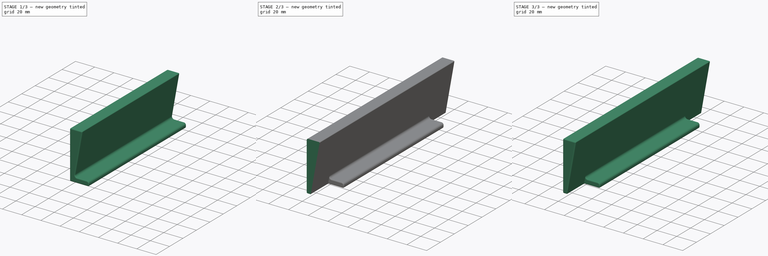
[diagram: build sequence overview — one tinted view per stage of 3, left to right]
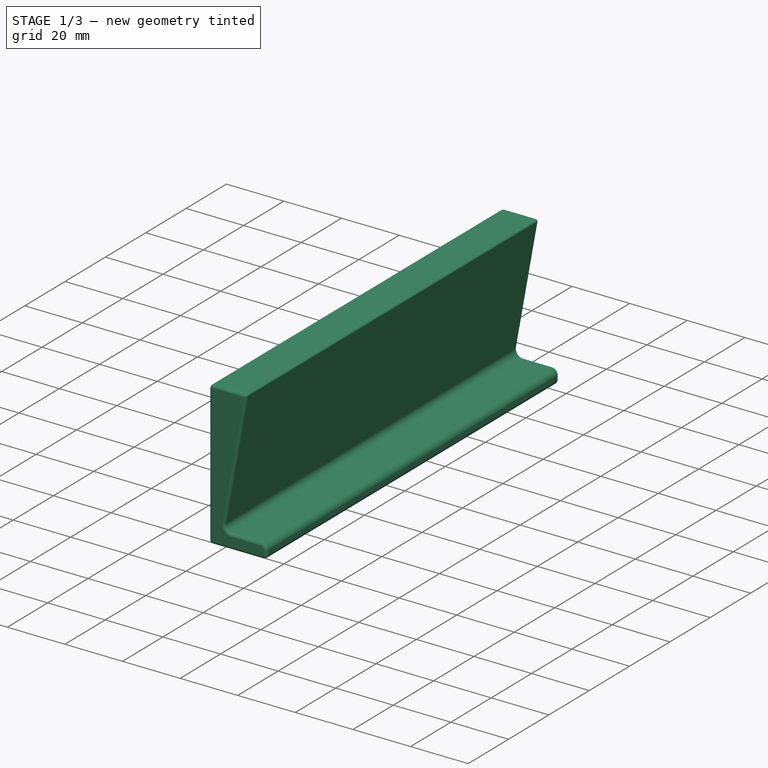
[diagram: stage 1 of 3 — iso view after this stage's code; geometry added in this stage tinted green]
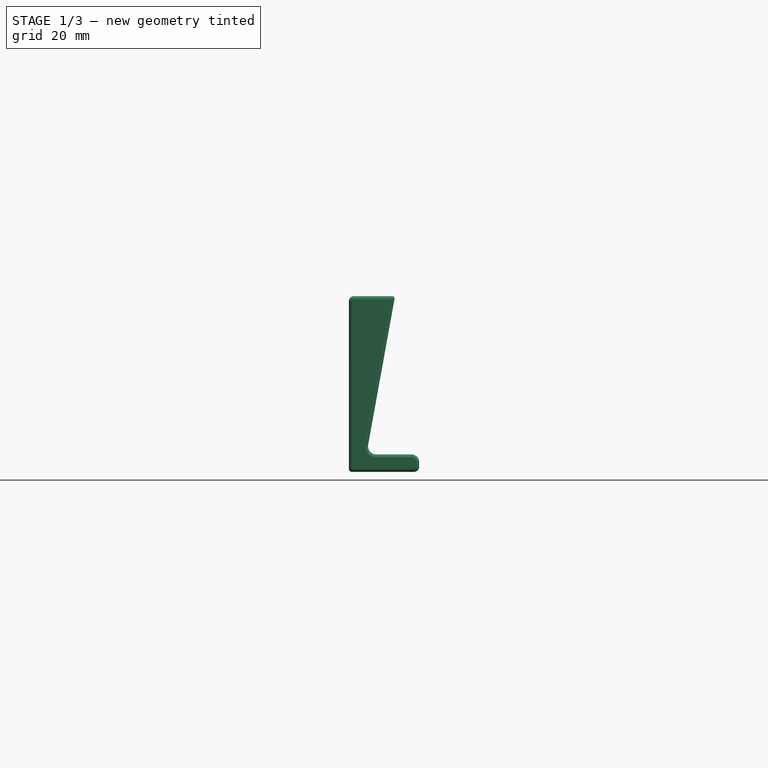
[diagram: stage 1 of 3 — front view after this stage's code; geometry added in this stage tinted green]
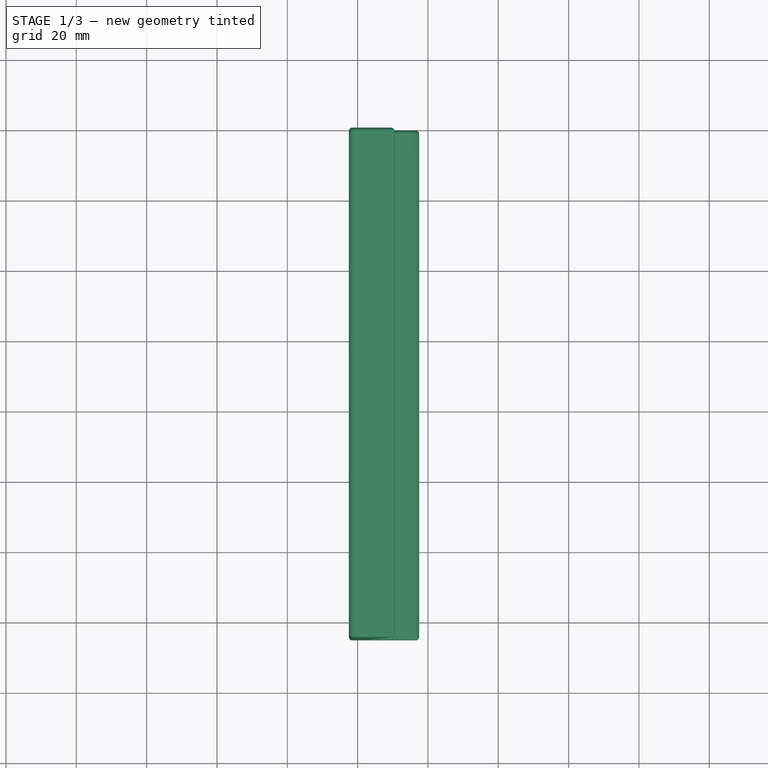
[diagram: stage 1 of 3 — top view after this stage's code; geometry added in this stage tinted green]
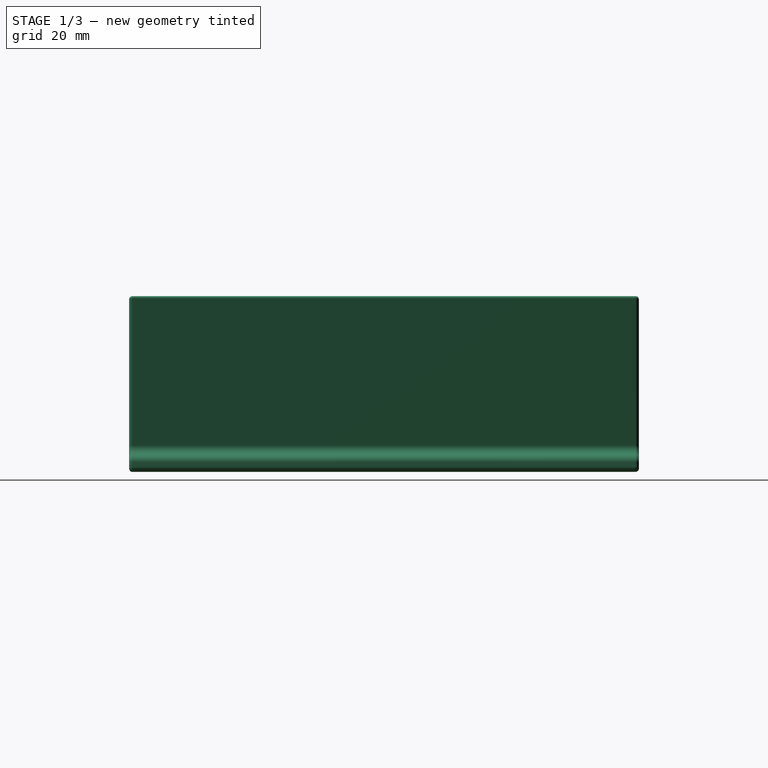
[diagram: stage 1 of 3 — right view after this stage's code; geometry added in this stage tinted green]
FCSTD DOCUMENT  (FreeCAD 2024.1006R14555 (Git shallow))
Label: Mounting_Spacer
License: All rights reserved
LicenseURL: https://en.wikipedia.org/wiki/All_rights_reserved
objects: Sketcher::SketchObject×2, Part::Extrusion×2, Part::Fillet×2, Part::MultiFuse×1
note: 9 computed .brp shape members not serialized (recipe doc carries the construction recipe); baked Part::Feature solids carry a one-line shape summary decoded from their .brp

FEATURE [Sketcher::SketchObject] Sketch
  ArcFitTolerance = 1e-06
  ExternalBSplineMaxDegree = 5
  ExternalBSplineTolerance = 0.0001
  FullyConstrained = false
  InternalTolerance = 1e-06
  InvalidShape = false
  MakeInternals = false
  Placement = pos=(0,0,0) rot=(1,0,0;1.5708rad)
  TreeRank = 1
  ValidateShape = false
  sketch-geometry (12):
    g0: LineSegment StartX=-4.69052 StartY=6e-16 StartZ=0 EndX=-14.7171 EndY=-4e-16 EndZ=0
    g1: LineSegment StartX=-17.0062 StartY=2.73999 StartZ=0 EndX=-9.5 EndY=44.2656 EndZ=0
    g2: LineSegment StartX=-10.1136 StartY=45 StartZ=0 EndX=-21.0312 EndY=45 EndZ=0
    g3: LineSegment StartX=-22.5 StartY=43.5312 StartZ=0 EndX=-22.5 EndY=-4.08405 EndZ=0
    g4: LineSegment StartX=-21.584 StartY=-5 StartZ=0 EndX=-4.06473 EndY=-5 EndZ=0
    g5: LineSegment StartX=-2.5 StartY=-3.43527 StartZ=0 EndX=-2.5 EndY=-2.19052 EndZ=0
    g6: ArcOfCircle CenterX=-21.0312 CenterY=43.5312 CenterZ=0 NormalX=0 NormalY=0 NormalZ=1 AngleXU=0 Radius=1.4688 StartAngle=1.5708 EndAngle=3.14159
    g7: ArcOfCircle CenterX=-10.1136 CenterY=44.3765 CenterZ=0 NormalX=0 NormalY=0 NormalZ=1 AngleXU=0 Radius=0.623519 StartAngle=6.10436 EndAngle=7.85398
    g8: ArcOfCircle CenterX=-21.584 CenterY=-4.08405 CenterZ=0 NormalX=0 NormalY=0 NormalZ=1 AngleXU=0 Radius=0.915954 StartAngle=3.14159 EndAngle=4.71239
    g9: ArcOfCircle CenterX=-14.7171 CenterY=2.32621 CenterZ=0 NormalX=0 NormalY=0 NormalZ=1 AngleXU=0 Radius=2.32621 StartAngle=2.96276 EndAngle=4.71239
    g10: ArcOfCircle CenterX=-4.69052 CenterY=-2.19052 CenterZ=0 NormalX=0 NormalY=0 NormalZ=1 AngleXU=0 Radius=2.19052 StartAngle=0 EndAngle=1.5708
    g11: ArcOfCircle CenterX=-4.06473 CenterY=-3.43527 CenterZ=0 NormalX=0 NormalY=0 NormalZ=1 AngleXU=0 Radius=1.56473 StartAngle=4.71239 EndAngle=6.28319
  constraints (20):
    c: Horizontal(g4)
    c: Vertical(g5)
    c: Perpendicular(g4,g3)
    c: Perpendicular(g3,g2)
    c: Tangent(g3,g6) = -1.5708
    c: Tangent(g2,g6) = -1.5708
    c: Tangent(g2,g7) = -1.5708
    c: Tangent(g1,g7) = -1.5708
    c: Tangent(g3,g8) = -1.5708
    c: Tangent(g4,g8) = -1.5708
    c: Tangent(g1,g9) = 1.5708
    c: Tangent(g0,g9) = 1.5708
    c: Tangent(g0,g10) = -1.5708
    c: Tangent(g5,g10) = -1.5708
    c: Tangent(g4,g11) = -1.5708
    c: Tangent(g5,g11) = -1.5708
    c: DistanceX(g1,g-1) = 9.5
    c: DistanceX(g5,g-1) = 2.5
    c: DistanceY(g4,g-1) = 5
    c: DistanceY(g-1,g2) = 45
FEATURE [Part::Extrusion] Extrude
  AutoTaperInnerAngle = true
  Base = -> Sketch
  Dir = (0,-1,-2e-16)
  DirMode = 2
  FaceMakerClass = Part::FaceMakerBullseye
  InvalidShape = false
  LengthFwd = 145
  LengthRev = 0
  Linearize = true
  Solid = true
  Symmetric = false
  TaperInnerAngle = 0
  TaperInnerAngleRev = 0
  TreeRank = 7
  ValidateShape = false
FEATURE [Part::Fillet] Fillet
  Base = -> Extrude
  EdgeLinks = -> Extrude [Edge3,Edge4,Edge6,Edge7,Edge27,Edge28,Edge30,Edge31,Edge33,Edge34,Edge35,Edge36]
  Edges = 12 edges r=1: [Edge3,Edge4,Edge6,Edge7,Edge27,Edge28,Edge30,Edge31,Edge33,Edge34,Edge35,Edge36]
  InvalidShape = false
  TreeRank = 8
  ValidateShape = false
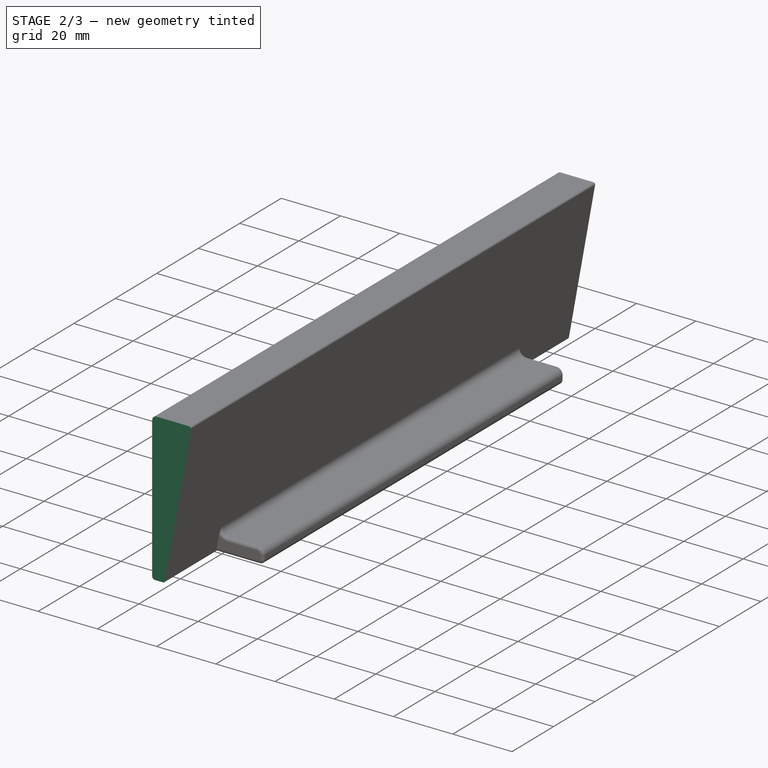
[diagram: stage 2 of 3 — iso view after this stage's code; geometry added in this stage tinted green]
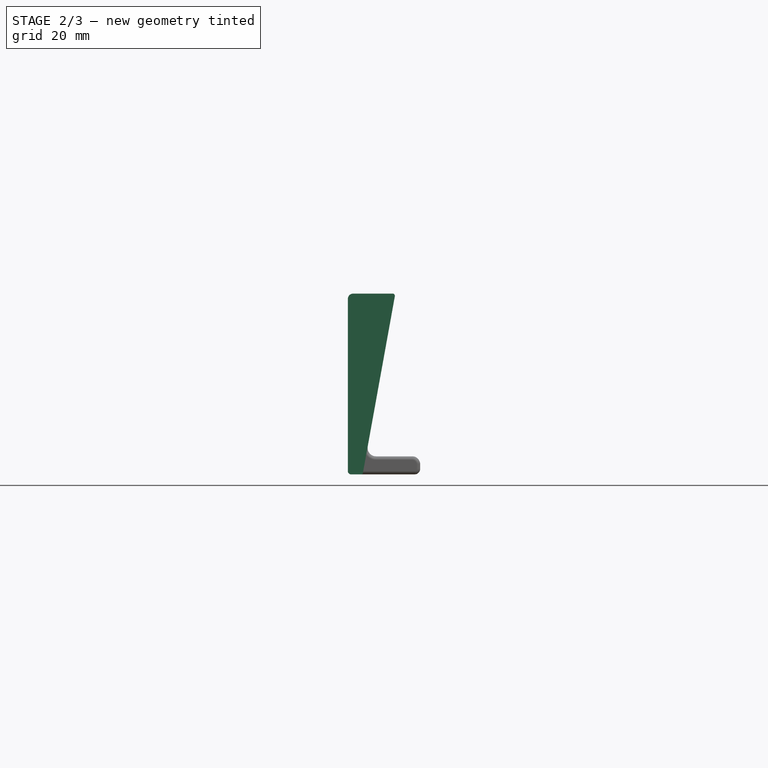
[diagram: stage 2 of 3 — front view after this stage's code; geometry added in this stage tinted green]
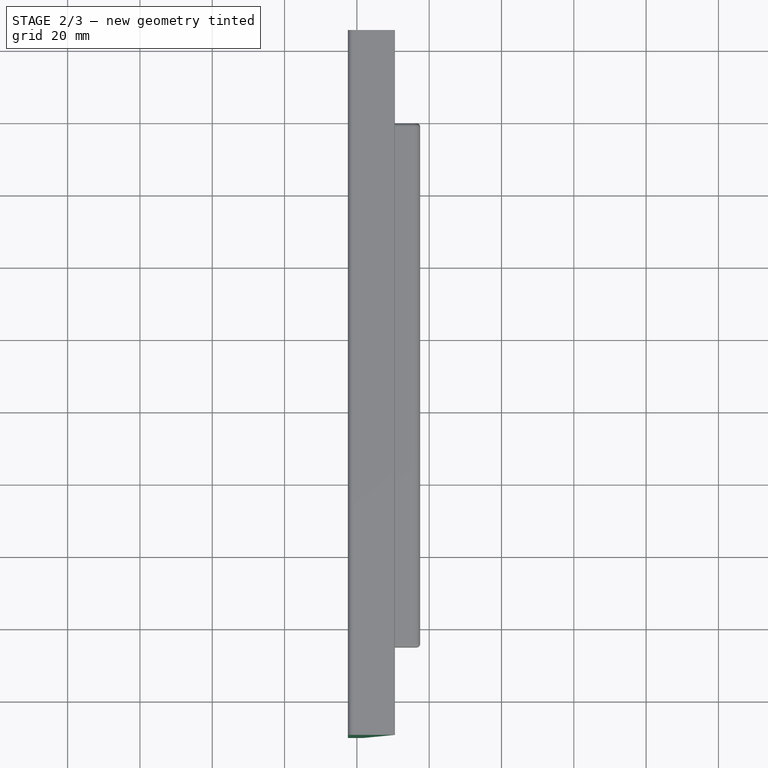
[diagram: stage 2 of 3 — top view after this stage's code; geometry added in this stage tinted green]
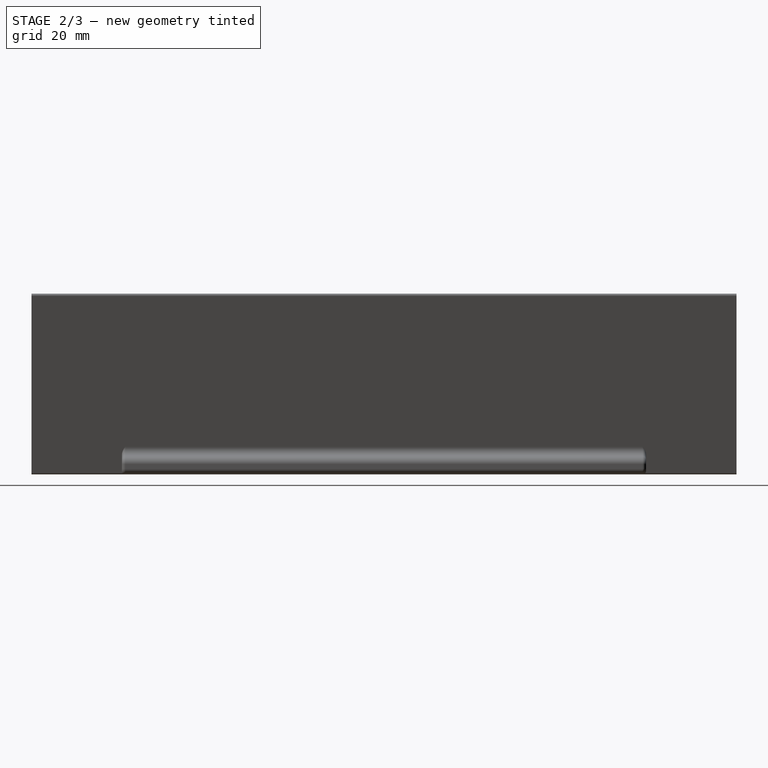
[diagram: stage 2 of 3 — right view after this stage's code; geometry added in this stage tinted green]
FEATURE [Sketcher::SketchObject] Sketch001
  ArcFitTolerance = 1e-06
  ExternalBSplineMaxDegree = 5
  ExternalBSplineTolerance = 0.0001
  FullyConstrained = false
  InternalTolerance = 1e-06
  InvalidShape = false
  MakeInternals = false
  Placement = pos=(0,0,0) rot=(1,0,0;1.5708rad)
  TreeRank = 4
  ValidateShape = false
  sketch-geometry (8):
    g0: LineSegment StartX=-18.337 StartY=-4.59943 StartZ=0 EndX=-9.5 EndY=44.2697 EndZ=0
    g1: LineSegment StartX=-10.1101 StartY=45 StartZ=0 EndX=-21.0312 EndY=45 EndZ=0
    g2: LineSegment StartX=-22.5 StartY=43.5312 StartZ=0 EndX=-22.5 EndY=-4.08405 EndZ=0
    g3: LineSegment StartX=-21.584 StartY=-5 StartZ=0 EndX=-18.8165 EndY=-5 EndZ=0
    g4: ArcOfCircle CenterX=-21.0312 CenterY=43.5312 CenterZ=0 NormalX=0 NormalY=0 NormalZ=1 AngleXU=0 Radius=1.4688 StartAngle=1.5708 EndAngle=3.14159
    g5: ArcOfCircle CenterX=-10.1101 CenterY=44.38 CenterZ=0 NormalX=0 NormalY=0 NormalZ=1 AngleXU=0 Radius=0.62 StartAngle=6.10429 EndAngle=7.85398
    g6: ArcOfCircle CenterX=-21.584 CenterY=-4.08405 CenterZ=0 NormalX=0 NormalY=0 NormalZ=1 AngleXU=0 Radius=0.915954 StartAngle=3.14159 EndAngle=4.71239
    g7: ArcOfCircle CenterX=-18.8165 CenterY=-4.51273 CenterZ=0 NormalX=0 NormalY=0 NormalZ=1 AngleXU=0 Radius=0.487272 StartAngle=4.71239 EndAngle=6.10429
  constraints (15):
    c: Horizontal(g3)
    c: Perpendicular(g3,g2)
    c: Perpendicular(g2,g1)
    c: Tangent(g2,g4) = -1.5708
    c: Tangent(g1,g4) = -1.5708
    c: Tangent(g1,g5) = -1.5708
    c: Tangent(g0,g5) = -1.5708
    c: Tangent(g2,g6) = -1.5708
    c: Tangent(g3,g6) = -1.5708
    c: DistanceX(g0,g-1) = 9.5
    c: DistanceY(g-1,g1) = 45
    c: Angle(g1,g0) = 1.3919
    c: Radius(g5) = 0.62
    c: Tangent(g0,g7) = -1.5708
    c: Tangent(g3,g7) = -1.5708
FEATURE [Part::Extrusion] Extrude001
  AutoTaperInnerAngle = true
  Base = -> Sketch001
  Dir = (0,-1,-2e-16)
  DirMode = 2
  FaceMakerClass = Part::FaceMakerBullseye
  InvalidShape = false
  LengthFwd = 170
  LengthRev = 25
  Linearize = true
  Solid = true
  Symmetric = false
  TaperInnerAngle = 0
  TaperInnerAngleRev = 0
  TreeRank = 6
  ValidateShape = false
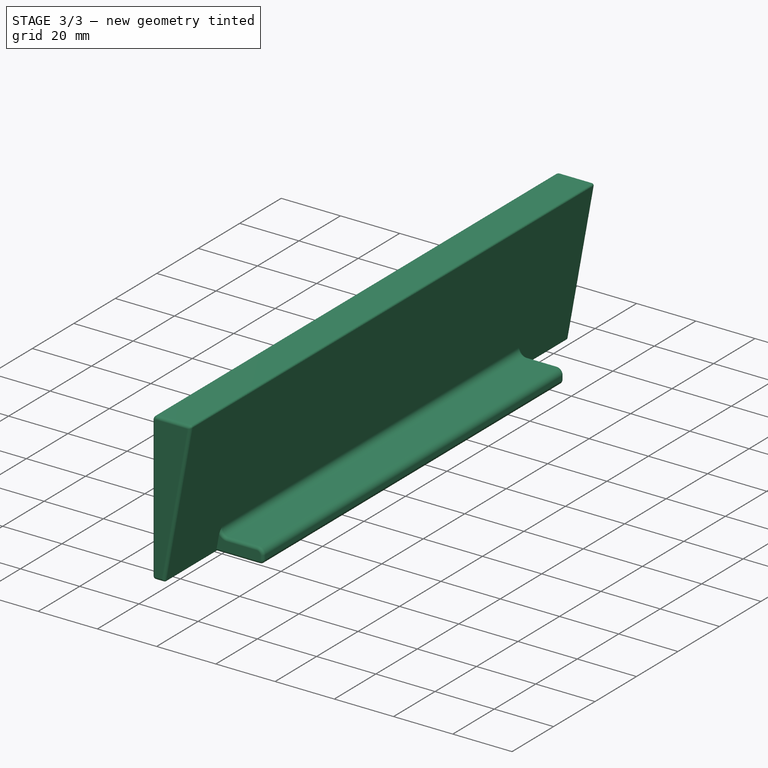
[diagram: stage 3 of 3 — iso view after this stage's code; geometry added in this stage tinted green]
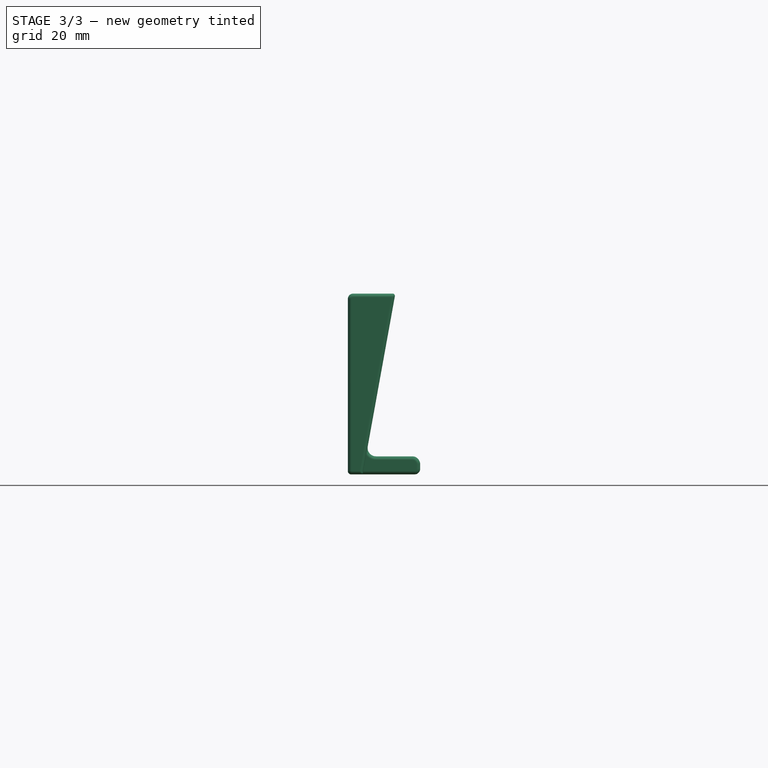
[diagram: stage 3 of 3 — front view after this stage's code; geometry added in this stage tinted green]
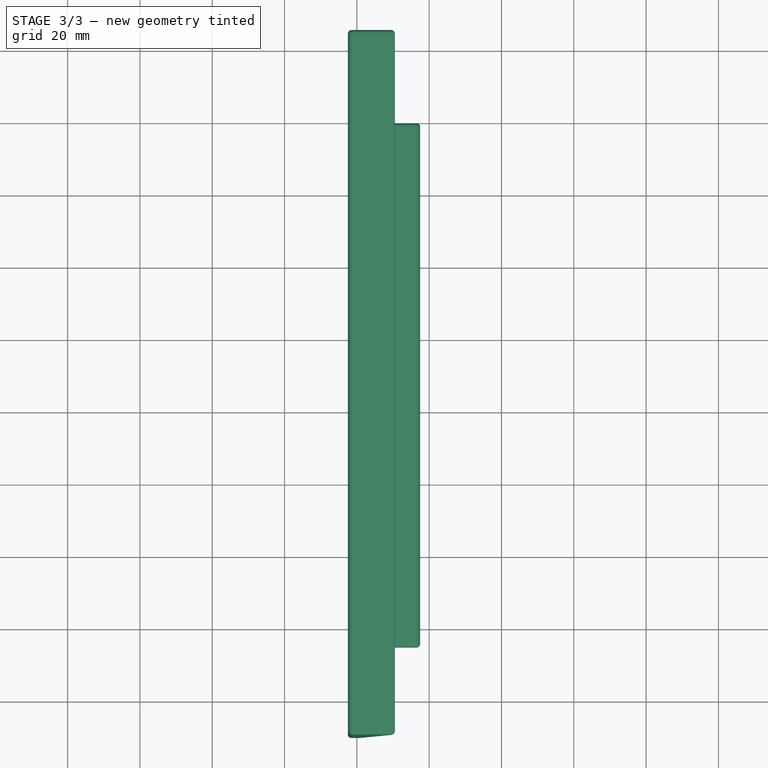
[diagram: stage 3 of 3 — top view after this stage's code; geometry added in this stage tinted green]
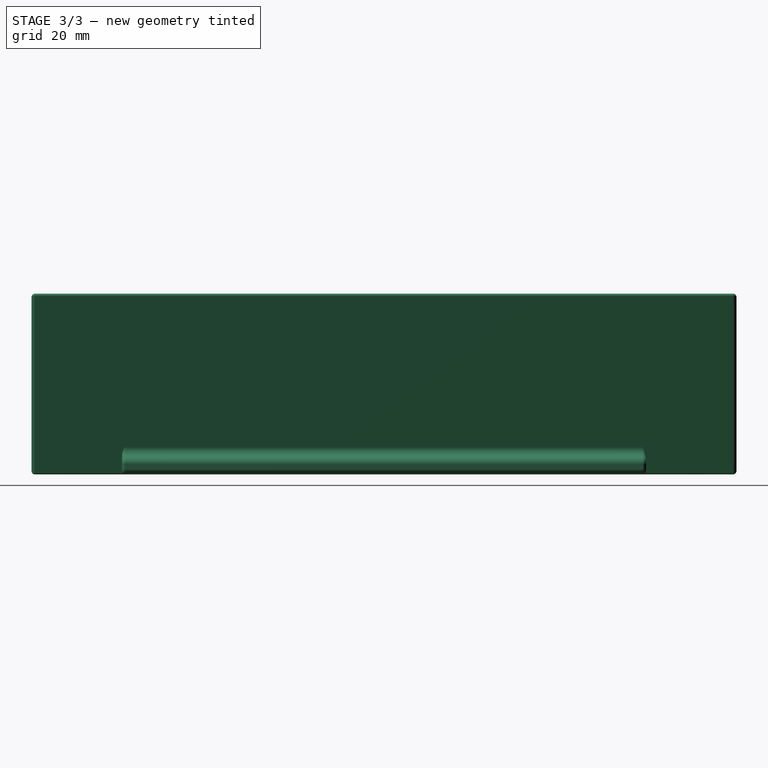
[diagram: stage 3 of 3 — right view after this stage's code; geometry added in this stage tinted green]
FEATURE [Part::MultiFuse] Fusion
  InvalidShape = false
  Shapes = -> [Fillet,Extrude001]
  TreeRank = 9
  ValidateShape = false
FEATURE [Part::Fillet] Fillet001
  Base = -> Fusion
  EdgeLinks = -> Fusion [Edge46,Edge60,Edge70,Edge71,Edge72,Edge73,Edge74,Edge75,Edge76,Edge80,Edge86,Edge87,Edge88,Edge89,Edge90,Edge91]
  Edges = 16 edges r=1: [Edge46,Edge60,Edge70,Edge71,Edge72,Edge73,Edge74,Edge75,Edge76,Edge80,Edge86,Edge87,Edge88,Edge89,Edge90,Edge91]
  InvalidShape = false
  TreeRank = 10
  ValidateShape = false
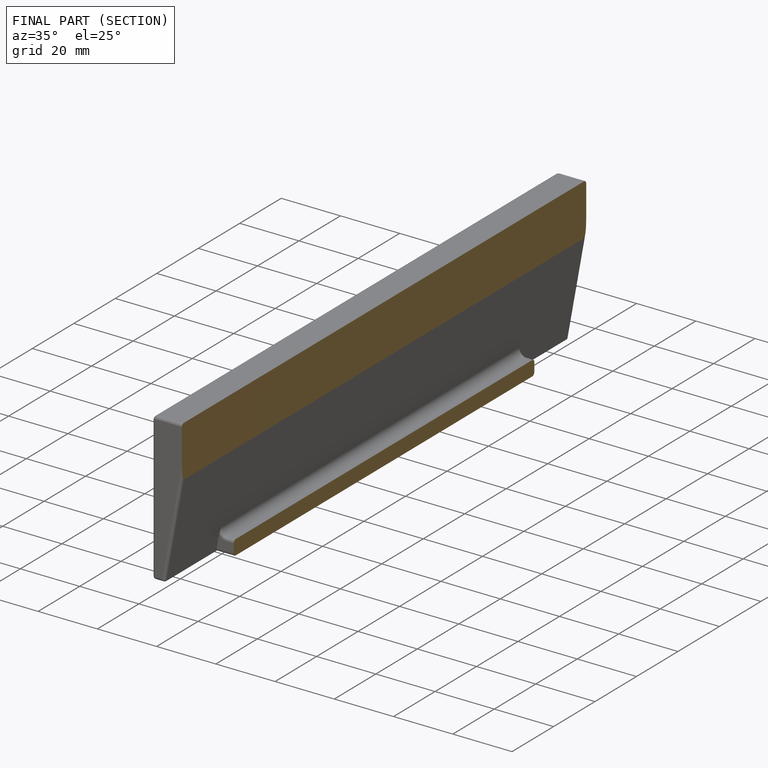
[diagram: finished part — half-section view (interior)]
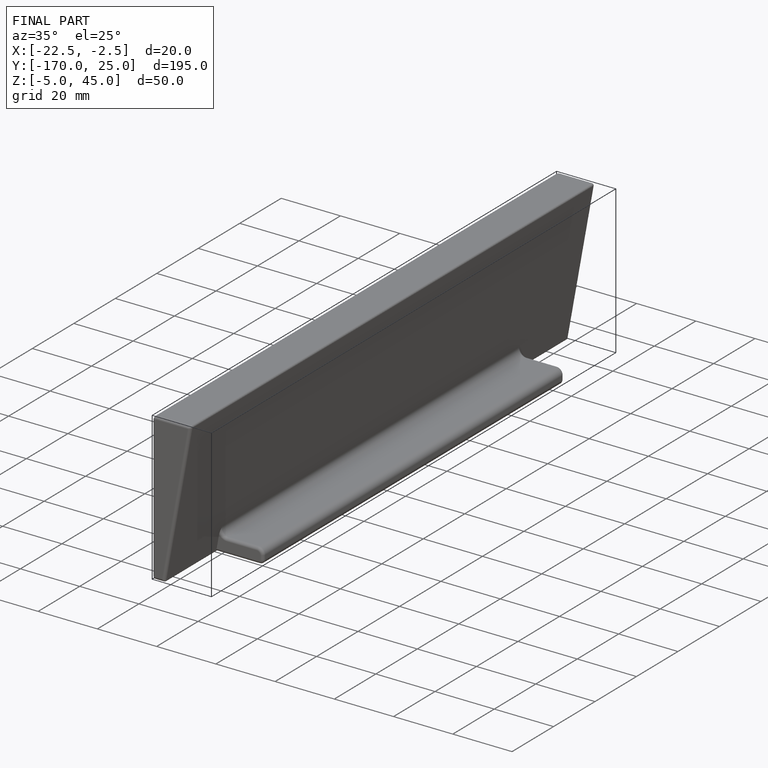
[diagram: finished part — iso view with bounding-box wireframe]
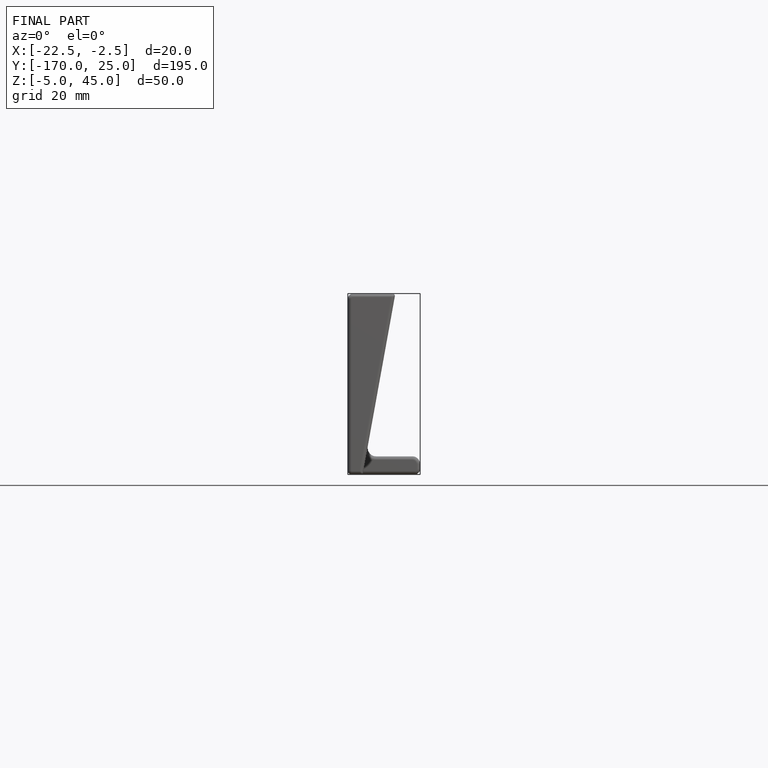
[diagram: finished part — front view with bounding-box wireframe]
